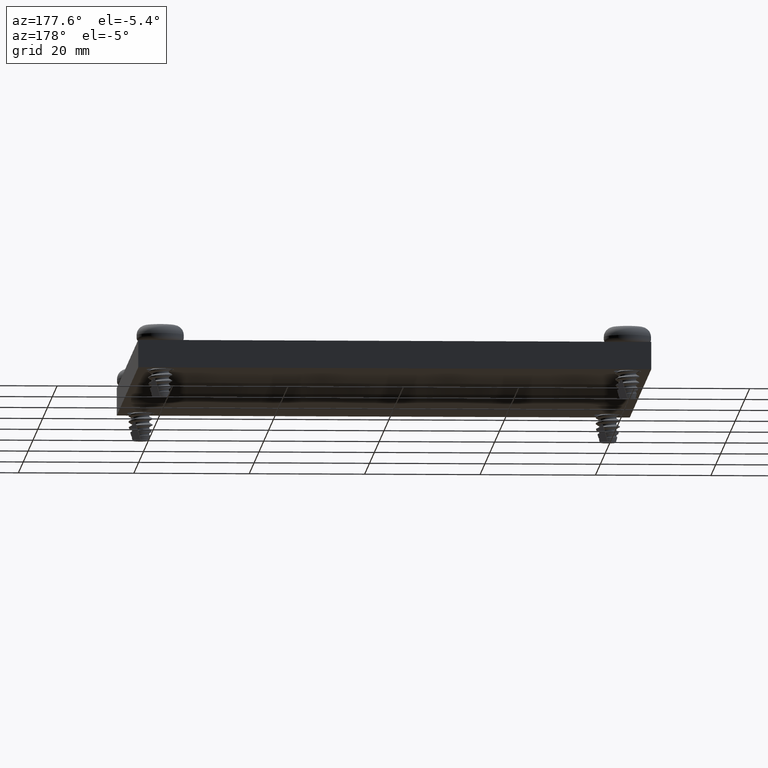
[diagram: clean part render]
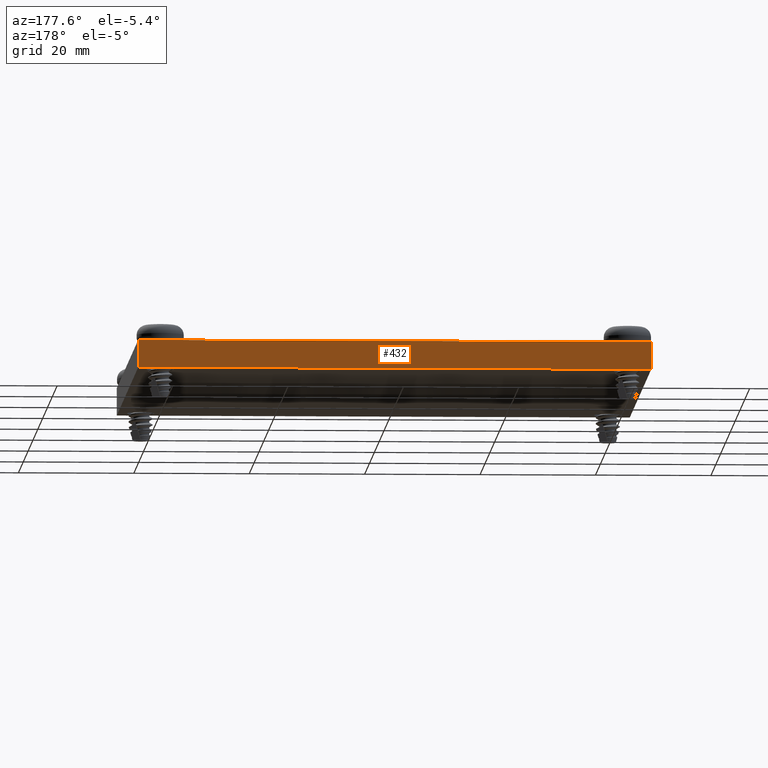
[diagram: same view with one face highlighted and labeled with its STEP entity id]
A machine part, auxiliary view. The second image highlights one B-rep face of the part: STEP entity #432.
In plain terms, the highlighted planar face has unit normal (0, 1, 0).
Its self-contained STEP definition (entity closure, byte-faithful):
#49=DIRECTION('',(-1.E0,0.E0,0.E0));
#50=VECTOR('',#49,3.5E0);
#51=CARTESIAN_POINT('',(1.75E0,1.75E0,0.E0));
#52=LINE('',#51,#50);
#113=DIRECTION('',(-1.E0,0.E0,0.E0));
#114=VECTOR('',#113,3.5E0);
#115=CARTESIAN_POINT('',(1.75E0,1.75E0,-1.875E-1));
#116=LINE('',#115,#114);
#153=DIRECTION('',(0.E0,0.E0,-1.E0));
#154=VECTOR('',#153,1.875E-1);
#155=CARTESIAN_POINT('',(1.75E0,1.75E0,0.E0));
#156=LINE('',#155,#154);
#157=DIRECTION('',(0.E0,0.E0,-1.E0));
#158=VECTOR('',#157,1.875E-1);
#159=CARTESIAN_POINT('',(-1.75E0,1.75E0,0.E0));
#160=LINE('',#159,#158);
#181=CARTESIAN_POINT('',(1.75E0,1.75E0,0.E0));
#182=VERTEX_POINT('',#181);
#183=CARTESIAN_POINT('',(-1.75E0,1.75E0,0.E0));
#184=VERTEX_POINT('',#183);
#205=CARTESIAN_POINT('',(1.75E0,1.75E0,-1.875E-1));
#206=VERTEX_POINT('',#205);
#207=CARTESIAN_POINT('',(-1.75E0,1.75E0,-1.875E-1));
#208=VERTEX_POINT('',#207);
#420=CARTESIAN_POINT('',(1.75E0,1.75E0,0.E0));
#421=DIRECTION('',(0.E0,1.E0,0.E0));
#422=DIRECTION('',(-1.E0,0.E0,0.E0));
#423=AXIS2_PLACEMENT_3D('',#420,#421,#422);
#424=PLANE('',#423);
#425=ORIENTED_EDGE('',*,*,#218,.T.);
#427=ORIENTED_EDGE('',*,*,#426,.T.);
#428=ORIENTED_EDGE('',*,*,#286,.F.);
#429=ORIENTED_EDGE('',*,*,#413,.F.);
#430=EDGE_LOOP('',(#425,#427,#428,#429));
#431=FACE_OUTER_BOUND('',#430,.F.);
#432=ADVANCED_FACE('',(#431),#424,.T.);
#218=EDGE_CURVE('',#182,#184,#52,.T.);
#286=EDGE_CURVE('',#206,#208,#116,.T.);
#413=EDGE_CURVE('',#182,#206,#156,.T.);
#426=EDGE_CURVE('',#184,#208,#160,.T.);